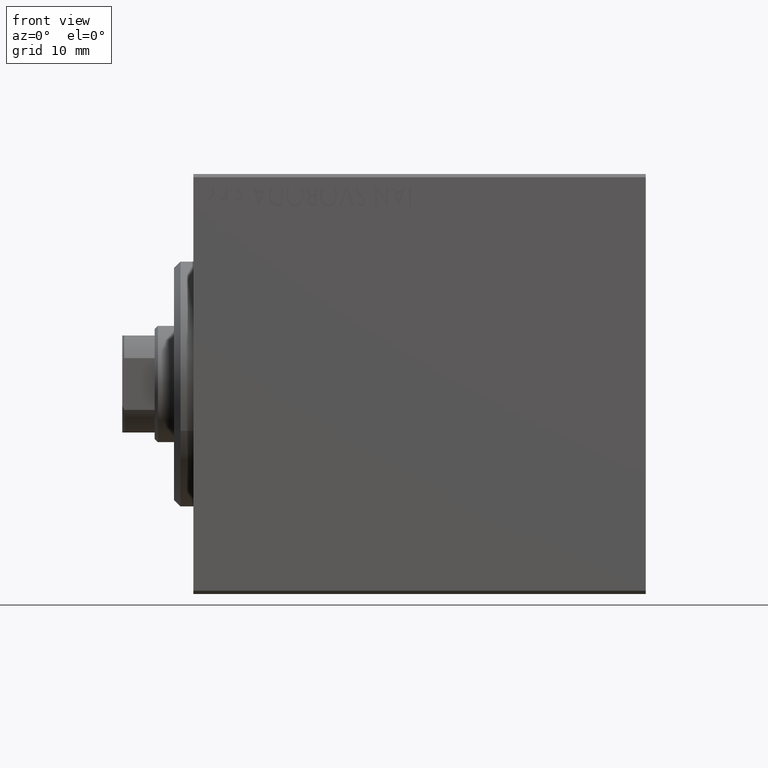
[diagram: clean part render]
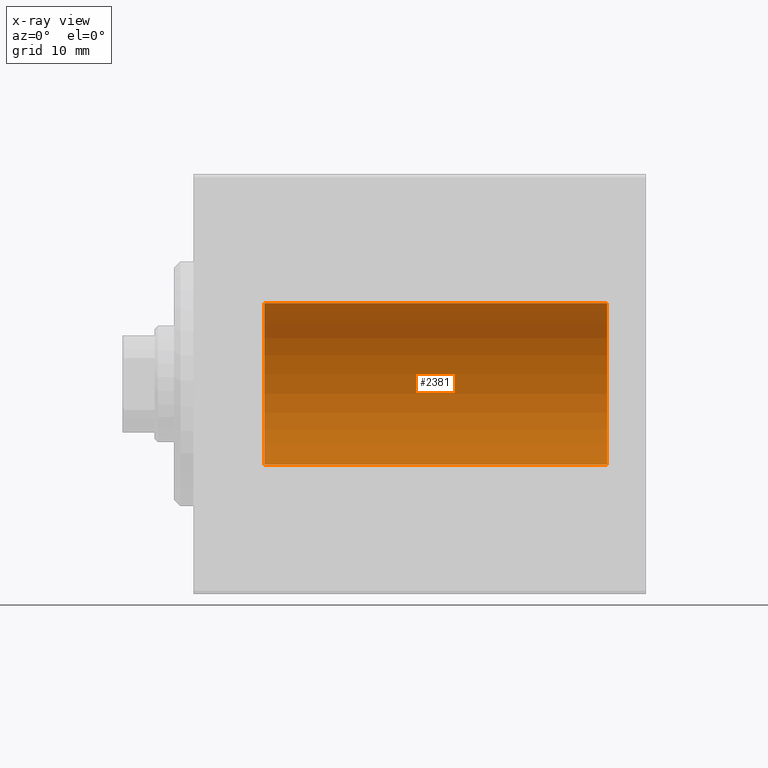
[diagram: x-ray — body ghosted, one internal face saturated and labeled with its STEP entity id]
A machine part, front view, then the same camera in x-ray: the body is ghosted and one INTERNAL B-rep face — a face not visible from any outside direction — is saturated and labeled: STEP entity #2381.
In plain terms, the highlighted cylindrical surface (partial cylindrical patch) has radius 12.5 mm, axis along (-1, -0, -0).
Its self-contained STEP definition (entity closure, byte-faithful):
#1370 = DIRECTION ( 'NONE',  ( -1.000000000000000000, -0.000000000000000000, -0.000000000000000000 ) ) ;
#1616 = VERTEX_POINT ( 'NONE', #7242 ) ;
#1976 = DIRECTION ( 'NONE',  ( -1.000000000000000000, 0.000000000000000000, 0.000000000000000000 ) ) ;
#2192 = DIRECTION ( 'NONE',  ( -1.000000000000000000, -0.000000000000000000, -0.000000000000000000 ) ) ;
#2381 = ADVANCED_FACE ( 'NONE', ( #2630 ), #5738, .F. ) ;
#2509 = AXIS2_PLACEMENT_3D ( 'NONE', #25673, #1976, #32324 ) ;
#2630 = FACE_OUTER_BOUND ( 'NONE', #30869, .T. ) ;
#2835 = VECTOR ( 'NONE', #20072, 1000.000000000000000 ) ;
#3139 = ORIENTED_EDGE ( 'NONE', *, *, #39449, .F. ) ;
#5738 = CYLINDRICAL_SURFACE ( 'NONE', #19072, 12.50000000000000000 ) ;
#6362 = ORIENTED_EDGE ( 'NONE', *, *, #27732, .T. ) ;
#7242 = CARTESIAN_POINT ( 'NONE',  ( 64.00000000000000000, 0.000000000000000000, 12.50000000000000000 ) ) ;
#8256 = VERTEX_POINT ( 'NONE', #23876 ) ;
#8864 = CIRCLE ( 'NONE', #2509, 12.50000000000000000 ) ;
#9021 = AXIS2_PLACEMENT_3D ( 'NONE', #40406, #30217, #16065 ) ;
#13508 = CARTESIAN_POINT ( 'NONE',  ( 10.99999999999999645, 0.000000000000000000, 12.50000000000000000 ) ) ;
#13746 = ORIENTED_EDGE ( 'NONE', *, *, #17187, .F. ) ;
#14488 = VERTEX_POINT ( 'NONE', #13508 ) ;
#16065 = DIRECTION ( 'NONE',  ( 0.000000000000000000, 0.000000000000000000, 1.000000000000000000 ) ) ;
#16143 = DIRECTION ( 'NONE',  ( 0.000000000000000000, 0.000000000000000000, 1.000000000000000000 ) ) ;
#16543 = LINE ( 'NONE', #30271, #2835 ) ;
#17187 = EDGE_CURVE ( 'NONE', #1616, #26063, #8864, .T. ) ;
#17458 = CIRCLE ( 'NONE', #9021, 12.50000000000000000 ) ;
#19072 = AXIS2_PLACEMENT_3D ( 'NONE', #25882, #2192, #16143 ) ;
#20072 = DIRECTION ( 'NONE',  ( -1.000000000000000000, -0.000000000000000000, -0.000000000000000000 ) ) ;
#21735 = LINE ( 'NONE', #32385, #38320 ) ;
#22205 = ORIENTED_EDGE ( 'NONE', *, *, #36022, .T. ) ;
#23876 = CARTESIAN_POINT ( 'NONE',  ( 10.99999999999999645, 1.530808498934191521E-15, -12.50000000000000000 ) ) ;
#25673 = CARTESIAN_POINT ( 'NONE',  ( 64.00000000000000000, 0.000000000000000000, 0.000000000000000000 ) ) ;
#25882 = CARTESIAN_POINT ( 'NONE',  ( 64.00000000000000000, 0.000000000000000000, 0.000000000000000000 ) ) ;
#26063 = VERTEX_POINT ( 'NONE', #35044 ) ;
#27732 = EDGE_CURVE ( 'NONE', #14488, #8256, #17458, .T. ) ;
#30217 = DIRECTION ( 'NONE',  ( -1.000000000000000000, 0.000000000000000000, 0.000000000000000000 ) ) ;
#30271 = CARTESIAN_POINT ( 'NONE',  ( 64.00000000000000000, 0.000000000000000000, 12.50000000000000000 ) ) ;
#30869 = EDGE_LOOP ( 'NONE', ( #3139, #13746, #22205, #6362 ) ) ;
#32324 = DIRECTION ( 'NONE',  ( 0.000000000000000000, 0.000000000000000000, 1.000000000000000000 ) ) ;
#32385 = CARTESIAN_POINT ( 'NONE',  ( 64.00000000000000000, 1.530808498934191521E-15, -12.50000000000000000 ) ) ;
#35044 = CARTESIAN_POINT ( 'NONE',  ( 64.00000000000000000, 1.530808498934191521E-15, -12.50000000000000000 ) ) ;
#36022 = EDGE_CURVE ( 'NONE', #1616, #14488, #16543, .T. ) ;
#38320 = VECTOR ( 'NONE', #1370, 1000.000000000000000 ) ;
#39449 = EDGE_CURVE ( 'NONE', #26063, #8256, #21735, .T. ) ;
#40406 = CARTESIAN_POINT ( 'NONE',  ( 10.99999999999999645, 0.000000000000000000, 0.000000000000000000 ) ) ;